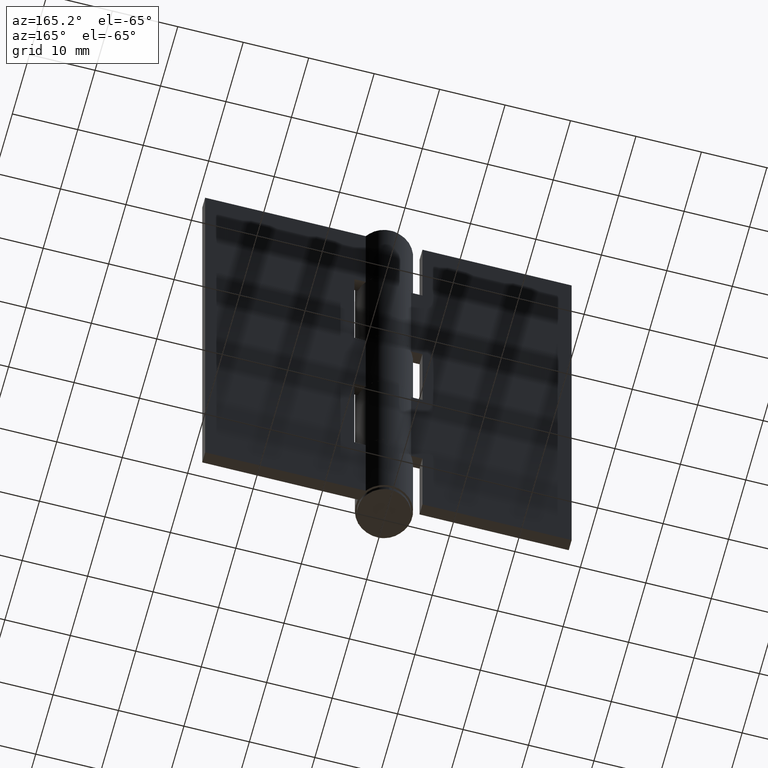
[diagram: clean part render]
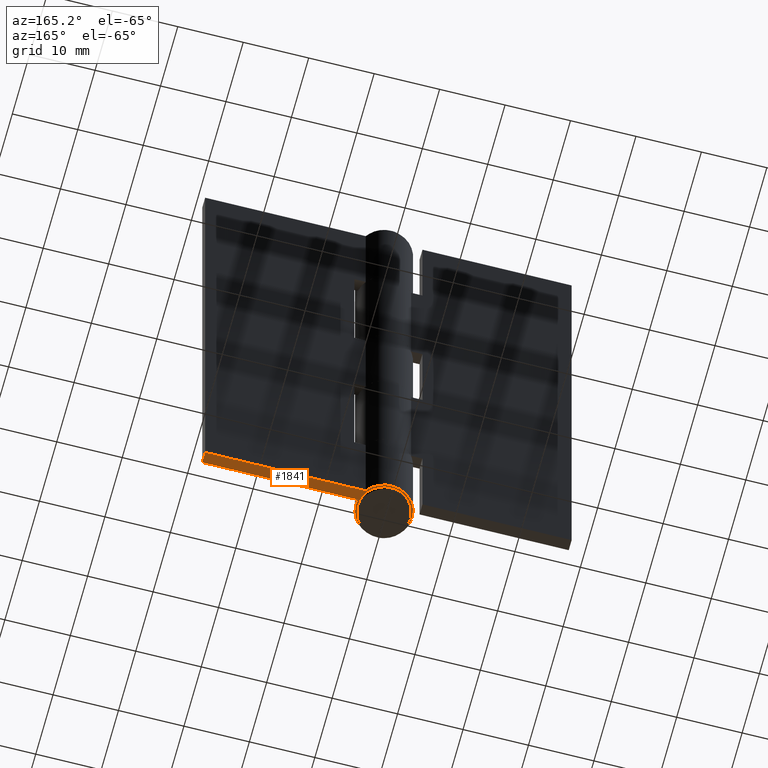
[diagram: same view with one face highlighted and labeled with its STEP entity id]
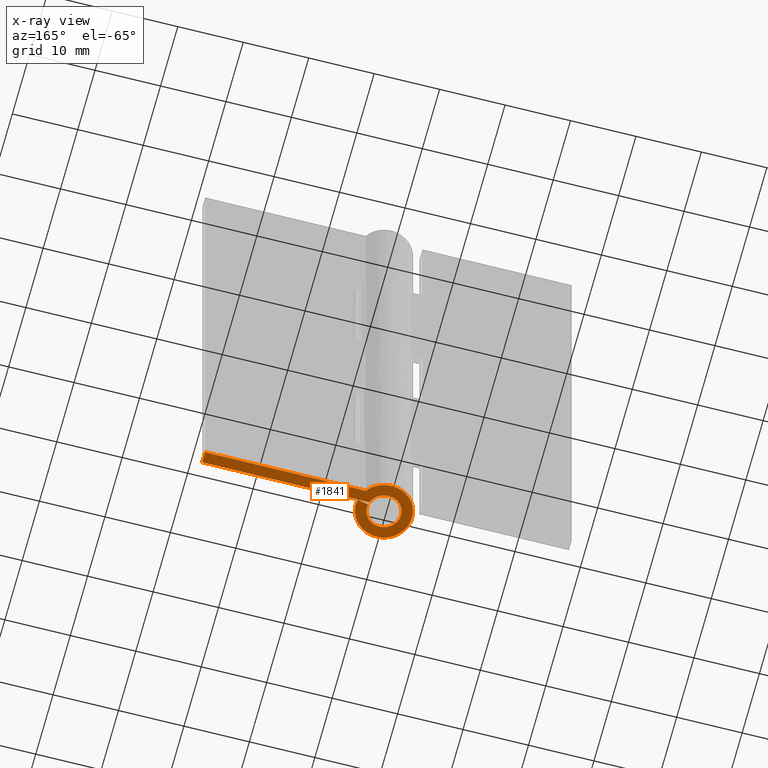
[diagram: x-ray of the same camera — body ghosted, the highlighted face saturated]
A machine part, auxiliary view. The second image highlights one B-rep face of the part: STEP entity #1841.
The next image is the same camera in x-ray: the body ghosted, the highlighted face saturated — about 0% of this face is hidden behind the body in this view.
In plain terms, the highlighted face is a freeform B-spline surface patch.
Its self-contained STEP definition (entity closure, byte-faithful):
#1731=CARTESIAN_POINT('',(-5.913372367555986,-4.729516308169166,0.0));
#1732=CARTESIAN_POINT('',(29.613385204994010,-4.729516308169166,0.0));
#1733=CARTESIAN_POINT('',(-5.913372367555986,4.729567100967324,0.0));
#1734=CARTESIAN_POINT('',(29.613385204994010,4.729567100967324,0.0));
#1735=B_SPLINE_SURFACE_WITH_KNOTS('',1,1,((#1731,#1733),(#1732,#1734)),.UNSPECIFIED.,.F.,.F.,.U.,(2,2),(2,2),(0.0,35.526757572549997),(0.0,9.459083409136490),.UNSPECIFIED.);
#1736=CARTESIAN_POINT('',(28.0,0.850000000000023,0.0));
#1737=VERTEX_POINT('',#1736);
#1738=CARTESIAN_POINT('',(28.0,2.550001000000000,0.0));
#1739=VERTEX_POINT('',#1738);
#1740=CARTESIAN_POINT('',(28.0,0.850000000000023,0.0));
#1741=CARTESIAN_POINT('',(28.0,2.550001000000000,0.0));
#1742=QUASI_UNIFORM_CURVE('',1,(#1740,#1741),.UNSPECIFIED.,.F.,.U.);
#1743=EDGE_CURVE('',#1737,#1739,#1742,.T.);
#1744=ORIENTED_EDGE('',*,*,#1743,.F.);
#1745=CARTESIAN_POINT('',(2.457132475061000,0.850000000000023,0.0));
#1746=VERTEX_POINT('',#1745);
#1747=CARTESIAN_POINT('',(2.457132475061000,0.850000000000023,0.0));
#1748=CARTESIAN_POINT('',(28.0,0.850000000000023,0.0));
#1749=QUASI_UNIFORM_CURVE('',1,(#1747,#1748),.UNSPECIFIED.,.F.,.U.);
#1750=EDGE_CURVE('',#1746,#1737,#1749,.T.);
#1751=ORIENTED_EDGE('',*,*,#1750,.F.);
#1752=CARTESIAN_POINT('',(2.554606439679965,0.483720930232559,0.0));
#1753=VERTEX_POINT('',#1752);
#1754=CARTESIAN_POINT('',(2.554606439679965,0.483720930232559,0.0));
#1755=CARTESIAN_POINT('',(2.612821281880728,0.177525382649884,0.0));
#1756=CARTESIAN_POINT('',(2.616793175034707,-0.413645367064434,0.0));
#1757=CARTESIAN_POINT('',(2.386239842691949,-1.090508685928906,0.0));
#1758=CARTESIAN_POINT('',(2.089246378327121,-1.568175487334646,0.0));
#1759=CARTESIAN_POINT('',(1.812781046569278,-1.880962346481863,0.0));
#1760=CARTESIAN_POINT('',(1.439959006619655,-2.181915442329533,0.0));
#1761=CARTESIAN_POINT('',(1.017990708198167,-2.412060443877805,0.0));
#1762=CARTESIAN_POINT('',(0.478865407745649,-2.576217204740838,0.0));
#1763=CARTESIAN_POINT('',(-0.063470790200735,-2.619566314266084,0.0));
#1764=CARTESIAN_POINT('',(-0.621850437863866,-2.543163131571810,0.0));
#1765=CARTESIAN_POINT('',(-1.114462146517599,-2.369040786321131,0.0));
#1766=CARTESIAN_POINT('',(-1.543216509203232,-2.109934616141158,0.0));
#1767=CARTESIAN_POINT('',(-1.902693748098239,-1.792512908362766,0.0));
#1768=CARTESIAN_POINT('',(-2.225816671232302,-1.382737285771964,0.0));
#1769=CARTESIAN_POINT('',(-2.499990586024036,-0.817963572908707,0.0));
#1770=CARTESIAN_POINT('',(-2.617789720998410,-0.199325909683275,0.0));
#1771=CARTESIAN_POINT('',(-2.583347236850031,0.467743843937299,0.0));
#1772=CARTESIAN_POINT('',(-2.414584539253136,1.030788926756413,0.0));
#1773=CARTESIAN_POINT('',(-2.139617914948895,1.498715922422711,0.0));
#1774=CARTESIAN_POINT('',(-1.844786775420191,1.849576017717072,0.0));
#1775=CARTESIAN_POINT('',(-1.494789236017491,2.146870858430293,0.0));
#1776=CARTESIAN_POINT('',(-1.058171994108857,2.392419441473976,0.0));
#1777=CARTESIAN_POINT('',(-0.582751640733279,2.550259417663796,0.0));
#1778=CARTESIAN_POINT('',(-0.127374507469809,2.609209425037349,0.0));
#1779=CARTESIAN_POINT('',(0.330574599551941,2.591313688747010,0.0));
#1780=CARTESIAN_POINT('',(0.780002118937118,2.497005198510721,0.0));
#1781=CARTESIAN_POINT('',(1.241677950882009,2.302533857689284,0.0));
#1782=CARTESIAN_POINT('',(1.657813058818605,2.023615567314580,0.0));
#1783=CARTESIAN_POINT('',(2.116851293034757,1.567553086518410,0.0));
#1784=CARTESIAN_POINT('',(2.355479371414305,1.144652539059663,0.0));
#1785=CARTESIAN_POINT('',(2.457132475061000,0.850000000000023,0.0));
#1786=B_SPLINE_CURVE_WITH_KNOTS('',3,(#1754,#1755,#1756,#1757,#1758,#1759,#1760,#1761,#1762,#1763,#1764,#1765,#1766,#1767,#1768,#1769,#1770,#1771,#1772,#1773,#1774,#1775,#1776,#1777,#1778,#1779,#1780,#1781,#1782,#1783,#1784,#1785),.UNSPECIFIED.,.F.,.U.,(4,1,1,1,1,1,1,1,1,1,1,1,1,1,1,1,1,1,1,1,1,1,1,1,1,1,1,1,1,4),(0.000000708368017,0.934966603414555,1.745326848296624,2.119335195429533,2.618003455661896,2.992004802483205,3.553039614842517,4.051639018800088,4.674946850924767,5.173626852439041,5.734651901213473,6.233324231066099,6.669665696401314,7.168324471795474,7.791704232591801,8.539609463923931,9.038298023044309,9.786306995558039,10.284991559145791,10.658996038871621,11.157669732515251,11.656365537056020,12.154925722322570,12.653609084246620,13.027622209501279,13.526291443649530,14.024974023501169,14.523653104271681,15.022322980686109,15.957300333279109),.UNSPECIFIED.);
#1787=EDGE_CURVE('',#1753,#1746,#1786,.T.);
#1788=ORIENTED_EDGE('',*,*,#1787,.F.);
#1789=CARTESIAN_POINT('',(4.224926034855400,0.800000000000022,0.0));
#1790=VERTEX_POINT('',#1789);
#1791=CARTESIAN_POINT('',(4.224926034855400,0.800000000000022,0.0));
#1792=CARTESIAN_POINT('',(2.554606439679965,0.483720930232559,0.0));
#1793=QUASI_UNIFORM_CURVE('',1,(#1791,#1792),.UNSPECIFIED.,.F.,.U.);
#1794=EDGE_CURVE('',#1790,#1753,#1793,.T.);
#1795=ORIENTED_EDGE('',*,*,#1794,.F.);
#1796=CARTESIAN_POINT('',(3.462296188947180,2.550001000000000,0.0));
#1797=VERTEX_POINT('',#1796);
#1798=CARTESIAN_POINT('',(4.224926034855400,0.800000000000022,0.0));
#1799=CARTESIAN_POINT('',(4.285783235080383,0.478984188059108,0.0));
#1800=CARTESIAN_POINT('',(4.326520180986271,-0.078563808301489,0.0));
#1801=CARTESIAN_POINT('',(4.222067078155416,-0.940855685742236,0.0));
#1802=CARTESIAN_POINT('',(3.992439995305730,-1.661011709953092,0.0));
#1803=CARTESIAN_POINT('',(3.590775800745772,-2.412235468211657,0.0));
#1804=CARTESIAN_POINT('',(3.126069944600034,-2.988003513025771,0.0));
#1805=CARTESIAN_POINT('',(2.517205450344320,-3.510603154044335,0.0));
#1806=CARTESIAN_POINT('',(1.787029186372507,-3.952496705921764,0.0));
#1807=CARTESIAN_POINT('',(0.988377155113666,-4.213747206673026,0.0));
#1808=CARTESIAN_POINT('',(0.062326335131724,-4.327647351709739,0.0));
#1809=CARTESIAN_POINT('',(-0.759411168425837,-4.268931483746473,0.0));
#1810=CARTESIAN_POINT('',(-1.654468983147339,-3.998225546156042,0.0));
#1811=CARTESIAN_POINT('',(-2.365480424741211,-3.621386611831476,0.0));
#1812=CARTESIAN_POINT('',(-3.018093445505357,-3.098550414329391,0.0));
#1813=CARTESIAN_POINT('',(-3.487613942055099,-2.549302118783146,0.0));
#1814=CARTESIAN_POINT('',(-3.867587079775997,-1.918306856858274,0.0));
#1815=CARTESIAN_POINT('',(-4.159470236741319,-1.204685666925577,0.0));
#1816=CARTESIAN_POINT('',(-4.315062139740598,-0.363959939575655,0.0));
#1817=CARTESIAN_POINT('',(-4.293033848872086,0.636532487608468,0.0));
#1818=CARTESIAN_POINT('',(-4.050873173586181,1.562519759248388,0.0));
#1819=CARTESIAN_POINT('',(-3.645197950831481,2.313473401613166,0.0));
#1820=CARTESIAN_POINT('',(-3.219941737485104,2.874021329921727,0.0));
#1821=CARTESIAN_POINT('',(-2.633276874529588,3.447260280995613,0.0));
#1822=CARTESIAN_POINT('',(-1.914471702101925,3.883696697820317,0.0));
#1823=CARTESIAN_POINT('',(-1.159957848945787,4.155763044402492,0.0));
#1824=CARTESIAN_POINT('',(-0.405630000212180,4.311769048574689,0.0));
#1825=CARTESIAN_POINT('',(0.434092901928362,4.310566311612309,0.0));
#1826=CARTESIAN_POINT('',(1.283594826439509,4.127438995132883,0.0));
#1827=CARTESIAN_POINT('',(1.997044518859847,3.835099897896411,0.0));
#1828=CARTESIAN_POINT('',(2.769836161742934,3.338395217313445,0.0));
#1829=CARTESIAN_POINT('',(3.229896778773247,2.865777023728719,0.0));
#1830=CARTESIAN_POINT('',(3.462296188947180,2.550001000000000,0.0));
#1831=B_SPLINE_CURVE_WITH_KNOTS('',3,(#1798,#1799,#1800,#1801,#1802,#1803,#1804,#1805,#1806,#1807,#1808,#1809,#1810,#1811,#1812,#1813,#1814,#1815,#1816,#1817,#1818,#1819,#1820,#1821,#1822,#1823,#1824,#1825,#1826,#1827,#1828,#1829,#1830),.UNSPECIFIED.,.F.,.U.,(4,1,1,1,1,1,1,1,1,1,1,1,1,1,1,1,1,1,1,1,1,1,1,1,1,1,1,1,1,1,4),(0.000000597836021,0.980187456917342,1.666293744166790,2.597490696659374,3.234628129425722,4.214831686879052,4.802932044570614,5.636142770025867,6.763251988097711,7.302372677941385,8.429628140121761,9.213776274937006,10.095953209629471,10.831105373832560,11.713270433824579,12.252372485625790,13.036463062342911,14.016699067771791,14.800836403345709,16.026097519334169,16.859262783311419,17.349357724480800,18.133517337305360,19.309673303670522,19.848785350090630,20.534958286987351,21.613169511922329,22.348322996333980,23.132473024091428,23.916654590390181,25.092843756867421),.UNSPECIFIED.);
#1832=EDGE_CURVE('',#1790,#1797,#1831,.T.);
#1833=ORIENTED_EDGE('',*,*,#1832,.T.);
#1834=CARTESIAN_POINT('',(28.0,2.550001000000000,0.0));
#1835=CARTESIAN_POINT('',(3.462296188947180,2.550001000000000,0.0));
#1836=QUASI_UNIFORM_CURVE('',1,(#1834,#1835),.UNSPECIFIED.,.F.,.U.);
#1837=EDGE_CURVE('',#1739,#1797,#1836,.T.);
#1838=ORIENTED_EDGE('',*,*,#1837,.F.);
#1839=EDGE_LOOP('',(#1744,#1751,#1788,#1795,#1833,#1838));
#1840=FACE_OUTER_BOUND('',#1839,.T.);
#1841=ADVANCED_FACE('',(#1840),#1735,.F.);